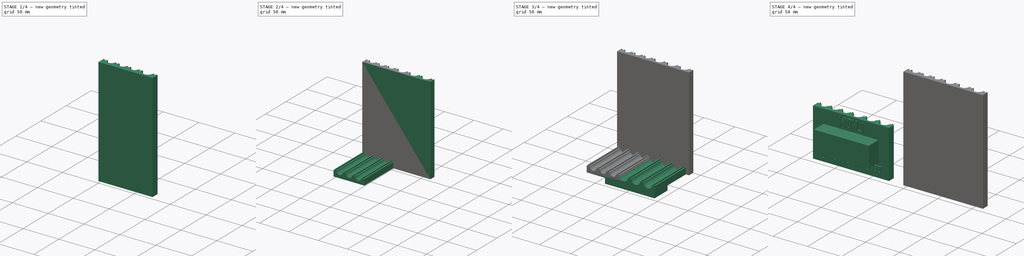
[diagram: build sequence overview — one tinted view per stage of 4, left to right]
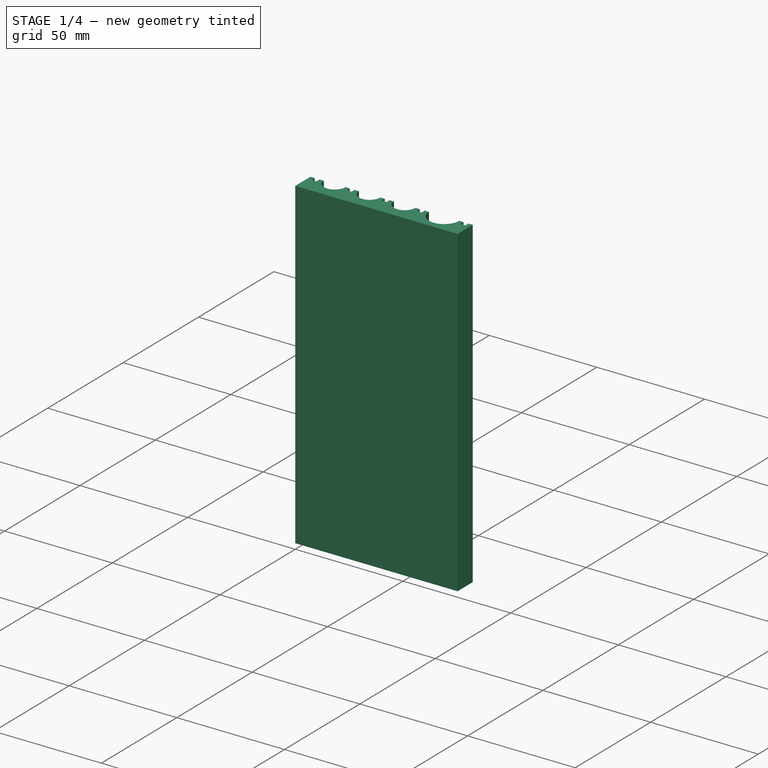
[diagram: stage 1 of 4 — iso view after this stage's code; geometry added in this stage tinted green]
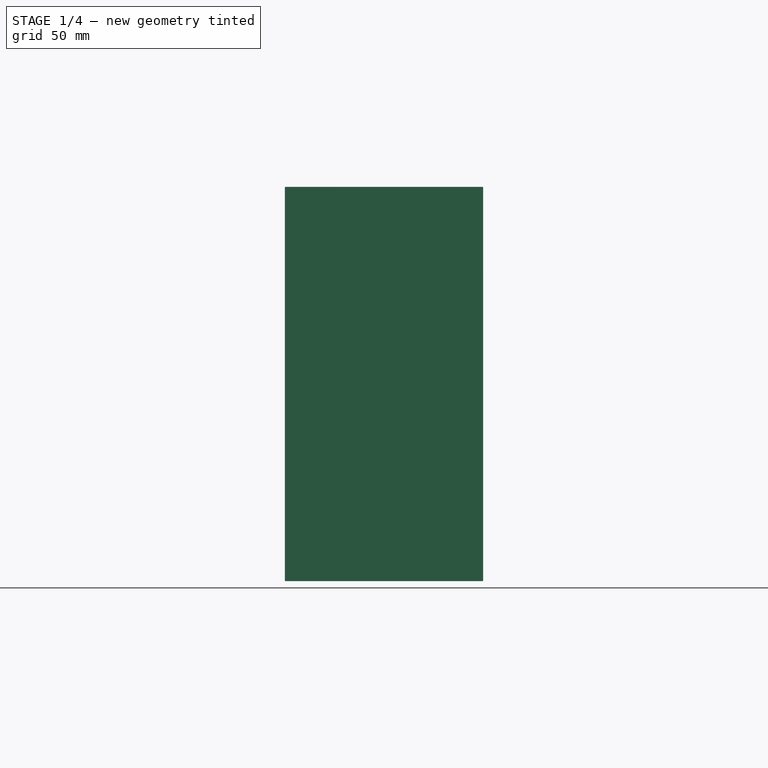
[diagram: stage 1 of 4 — front view after this stage's code; geometry added in this stage tinted green]
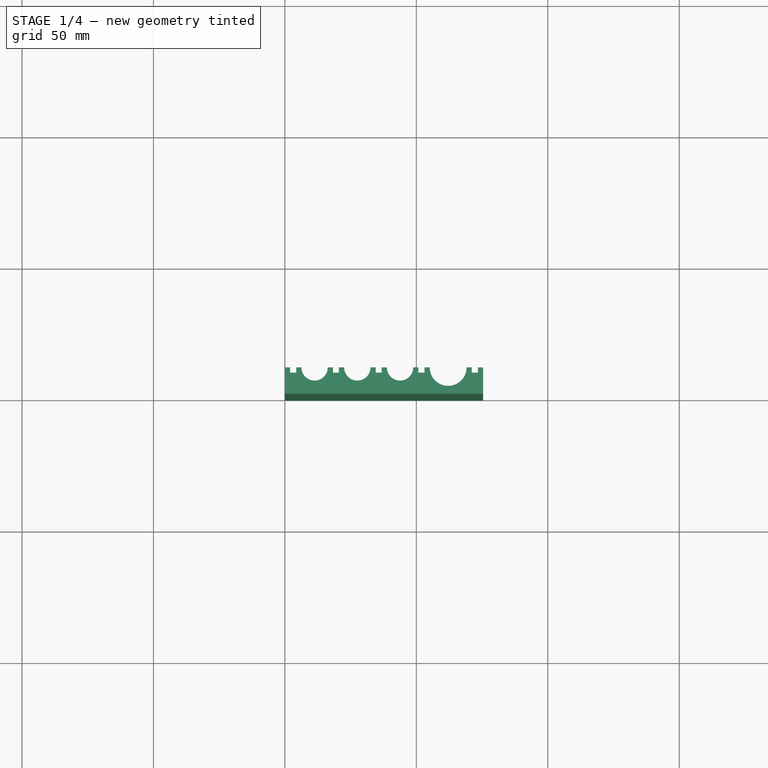
[diagram: stage 1 of 4 — top view after this stage's code; geometry added in this stage tinted green]
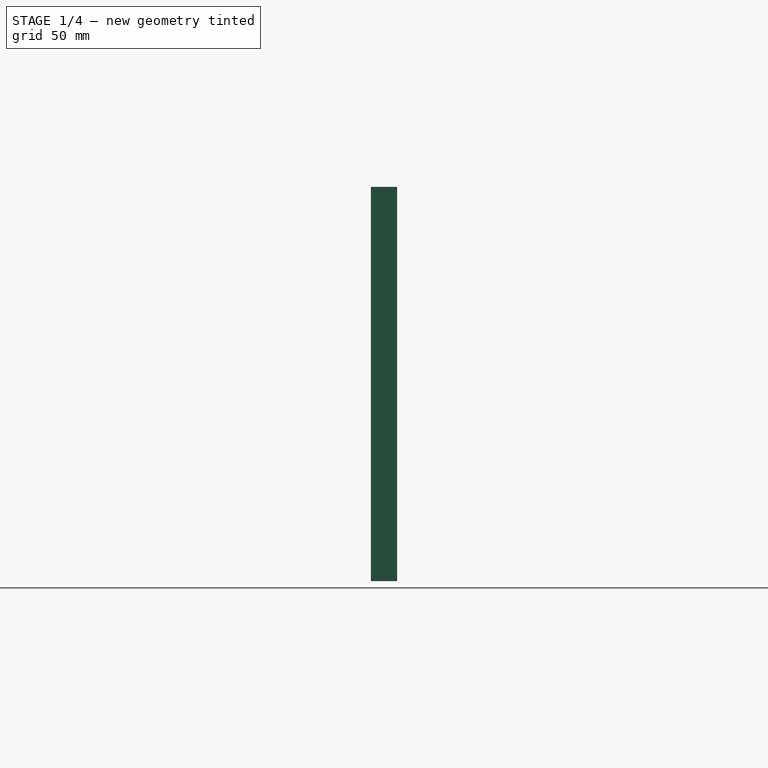
[diagram: stage 1 of 4 — right view after this stage's code; geometry added in this stage tinted green]
FCSTD DOCUMENT  (FreeCAD 1.1R39757 (Git))
Label: Каток влада
License: All rights reserved
LicenseURL: https://en.wikipedia.org/wiki/All_rights_reserved
objects: Sketcher::SketchObject×5, PartDesign::Pad×5, Measure::MeasureDistance×5, PartDesign::LinearPattern×4, Part::Feature×2, App::Point×2, Part::Part2DObjectPython×2, Part::Extrusion×2, Part::MultiFuse×2, PartDesign::Body×2, App::DocumentObjectGroup×1
note: 43 computed .brp shape members not serialized (recipe doc carries the construction recipe); baked Part::Feature solids carry a one-line shape summary decoded from their .brp

FEATURE [Part::Feature] _6mm_bottom001
  shape: bbox 120 x 10 x 150 mm, 3892 faces, 0 solids (baked)
FEATURE [Part::Feature] _6mm_top001
  shape: bbox 120 x 24 x 70 mm, 7716 faces, 0 solids (baked)
FEATURE [App::Point] Origin001
  Role = Origin
FEATURE [Sketcher::SketchObject] Sketch
  ArcFitTolerance = 1e-06
  AttachmentSupport = -> [XY_Plane]
  ExternalTypes = [0]
  FullyConstrained = true
  MakeInternals = false
  MapMode = 5
  sketch-geometry (14):
    g0: LineSegment StartX=18.3 StartY=8 StartZ=0 EndX=20.6 EndY=8 EndZ=0
    g1: LineSegment StartX=20.6 StartY=8 StartZ=0 EndX=20.6 EndY=10 EndZ=0
    g2: LineSegment StartX=20.6 StartY=10 StartZ=0 EndX=22.6 EndY=10 EndZ=0
    g3: LineSegment StartX=2 StartY=8 StartZ=0 EndX=2 EndY=10 EndZ=0
    g4: LineSegment StartX=2 StartY=10 StartZ=0 EndX=0 EndY=10 EndZ=0
    g5: LineSegment StartX=2 StartY=8 StartZ=0 EndX=4.3 EndY=8 EndZ=0
    g6: LineSegment StartX=4.3 StartY=8 StartZ=0 EndX=4.3 EndY=10 EndZ=0
    g7: LineSegment StartX=4.3 StartY=10 StartZ=0 EndX=6.3 EndY=10 EndZ=0
    g8: LineSegment StartX=16.3 StartY=10 StartZ=0 EndX=18.3 EndY=10 EndZ=0
    g9: LineSegment StartX=18.3 StartY=10 StartZ=0 EndX=18.3 EndY=8 EndZ=0
    g10: ArcOfCircle CenterX=11.3 CenterY=10 CenterZ=0 NormalX=0 NormalY=0 NormalZ=1 AngleXU=0 Radius=5 StartAngle=3.14159 EndAngle=6.28319
    g11: LineSegment StartX=0 StartY=10 StartZ=0 EndX=0 EndY=0 EndZ=0
    g12: LineSegment StartX=0 StartY=0 StartZ=0 EndX=22.6 EndY=0 EndZ=0
    g13: LineSegment StartX=22.6 StartY=0 StartZ=0 EndX=22.6 EndY=10 EndZ=0
  constraints (44):
    c: Coincident(g0,g1)
    c: Coincident(g1,g2)
    c: Vertical(g3)
    c: Coincident(g3,g4)
    c: Coincident(g3,g5)
    c: Coincident(g5,g6)
    c: Vertical(g6)
    c: Coincident(g6,g7)
    c: Horizontal(g7)
    c: Equal(g7,g4)
    c: Equal(g6,g3)
    c: Horizontal(g3,g6)
    c: Horizontal(g4)
    c: DistanceX(g5,g5) = 2.3
    c: DistanceY(g6,g6) = 2
    c: Coincident(g8,g9)
    c: Coincident(g9,g0)
    c: Vertical(g9)
    c: Vertical(g1)
    c: Horizontal(g2)
    c: Horizontal(g8)
    c: Equal(g2,g8)
    c: Equal(g1,g9)
    c: Equal(g1,g3)
    c: Equal(g0,g5)
    c: Equal(g4,g2)
    c: Horizontal(g1,g8)
    c: Coincident(g10,g7)
    c: Coincident(g10,g8)
    c: Horizontal(g10,g7)
    c: Horizontal(g10,g8)
    c: Radius(g10) = 5
    c: DistanceX(g7,g7) = 2
    c: Coincident(g11,g4)
    c: Coincident(g12,g11)
    c: Horizontal(g12)
    c: Coincident(g13,g12)
    c: Coincident(g13,g2)
    c: Vertical(g13)
    c: Distance(g10,g12) = 5
    c: Vertical(g11)
    c: Coincident(g11,g-1)
    c: DistanceX(g4,g2) = 22.6
    c: DistanceX(g3,g1) = 18.6
FEATURE [PartDesign::Pad] Pad
  Direction = (0,0,1)
  Length = 150
  Length2 = 10
  Profile = -> Sketch
  ReferenceAxis = -> Sketch [N_Axis]
  Refine = true
  Suppressed = false
  Type = 0
FEATURE [PartDesign::LinearPattern] LinearPattern
  BaseFeature = -> Pad
  Direction = -> Sketch [H_Axis]
  Length = 32.5
  Mode = 0
  Occurrences = 3
  Offset = 16.25
  Originals = -> [Pad]
  Refine = true
  Suppressed = false
  TransformMode = 0
FEATURE [Sketcher::SketchObject] Sketch005
  ArcFitTolerance = 1e-06
  AttachmentSupport = -> [LinearPattern]
  ExternalGeometry = -> [LinearPattern]
  ExternalTypes = [0,0,0]
  FullyConstrained = true
  MakeInternals = false
  MapMode = 5
  Placement = pos=(0,0,0) rot=(1,0,0;3.14159rad)
  sketch-geometry (17):
    g0: LineSegment StartX=48.8 StartY=-10 StartZ=0 EndX=50.8 EndY=-10 EndZ=0
    g1: LineSegment StartX=50.8 StartY=-10 StartZ=0 EndX=50.8 EndY=-8 EndZ=0
    g2: LineSegment StartX=50.8 StartY=-8 StartZ=0 EndX=53.1 EndY=-8 EndZ=0
    g3: LineSegment StartX=53.1 StartY=-8 StartZ=0 EndX=53.1 EndY=-10 EndZ=0
    g4: LineSegment StartX=53.1 StartY=-10 StartZ=0 EndX=55.1 EndY=-10 EndZ=0
    g5: LineSegment StartX=48.8 StartY=-10 StartZ=0 EndX=48.8 EndY=0 EndZ=0
    g6: LineSegment StartX=48.8 StartY=0 StartZ=0 EndX=75.4 EndY=0 EndZ=0
    g7: LineSegment StartX=75.4 StartY=0 StartZ=0 EndX=75.4 EndY=-10 EndZ=0
    g8: LineSegment StartX=71.1 StartY=-10 StartZ=0 EndX=71.1 EndY=-8 EndZ=0
    g9: LineSegment StartX=71.1 StartY=-8 StartZ=0 EndX=73.4 EndY=-8 EndZ=0
    g10: LineSegment StartX=73.4 StartY=-8 StartZ=0 EndX=73.4 EndY=-10 EndZ=0
    g11: LineSegment [constr] StartX=71.1 StartY=-8 StartZ=0 EndX=73.4 EndY=-8 EndZ=0
    g12: LineSegment StartX=69.1 StartY=-10 StartZ=0 EndX=71.1 EndY=-10 EndZ=0
    g13: LineSegment StartX=73.4 StartY=-10 StartZ=0 EndX=75.4 EndY=-10 EndZ=0
    g14: LineSegment [constr] StartX=73.4 StartY=-10 StartZ=0 EndX=75.4 EndY=-10 EndZ=0
    g15: LineSegment [constr] StartX=69.1 StartY=-10 StartZ=0 EndX=71.1 EndY=-10 EndZ=0
    g16: ArcOfCircle CenterX=62.1 CenterY=-10 CenterZ=0 NormalX=0 NormalY=0 NormalZ=1 AngleXU=0 Radius=7 StartAngle=0 EndAngle=3.14159
  constraints (44):
    c: Coincident(g-4,g0)
    c: Coincident(g0,g-4)
    c: Coincident(g0,g1)
    c: Coincident(g1,g-3)
    c: Coincident(g1,g2)
    c: Coincident(g2,g-3)
    c: Coincident(g2,g3)
    c: Vertical(g3)
    c: Coincident(g3,g4)
    c: Coincident(g4,g-5)
    c: Horizontal(g4)
    c: Coincident(g0,g5)
    c: PointOnObject(g5,g-1)
    c: Vertical(g5)
    c: Coincident(g5,g6)
    c: PointOnObject(g6,g-1)
    c: Coincident(g6,g7)
    c: Vertical(g7)
    c: Coincident(g15,g12)
    c: Coincident(g12,g15)
    c: Coincident(g12,g8)
    c: Coincident(g8,g11)
    c: Coincident(g8,g9)
    c: Coincident(g9,g11)
    c: Coincident(g9,g10)
    c: Vertical(g10)
    c: Coincident(g10,g13)
    c: Coincident(g13,g14)
    c: Horizontal(g13)
    c: Coincident(g7,g13)
    c: Coincident(g14,g10)
    c: Coincident(g16,g4)
    c: Coincident(g16,g12)
    c: Equal(g12,g4)
    c: Equal(g8,g3)
    c: Equal(g9,g2)
    c: Horizontal(g12)
    c: Vertical(g8)
    c: Horizontal(g9)
    c: Equal(g13,g12)
    c: Horizontal(g8,g10)
    c: Horizontal(g12,g4)
    c: Horizontal(g12,g16)
    c: Radius(g16) = 7
FEATURE [PartDesign::Pad] Pad005
  BaseFeature = -> LinearPattern
  Direction = (0,0,-1)
  Length = 150
  Length2 = 10
  Profile = -> Sketch005
  ReferenceAxis = -> Sketch005 [N_Axis]
  Refine = true
  Reversed = true
  Suppressed = false
  Type = 0
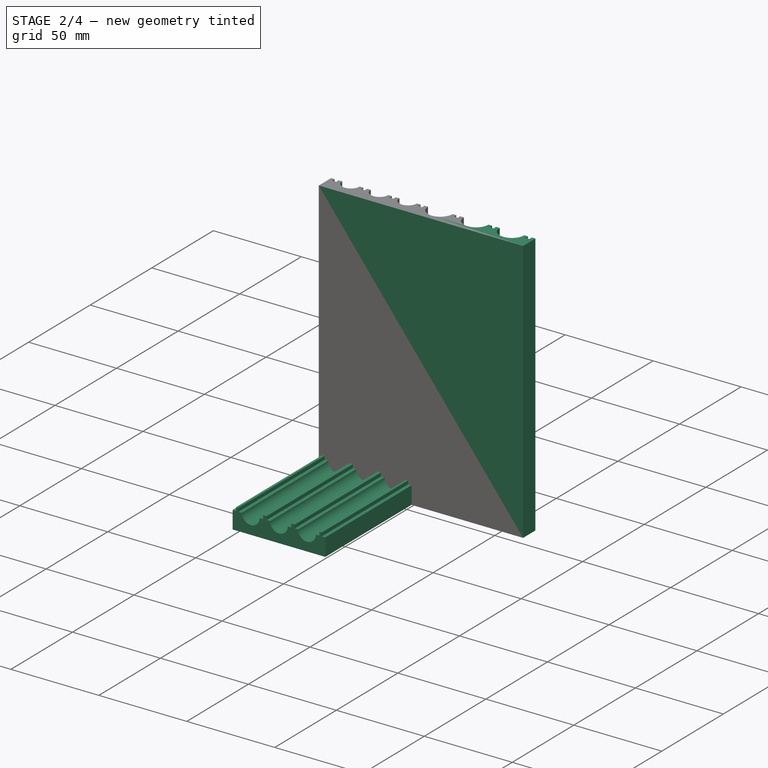
[diagram: stage 2 of 4 — iso view after this stage's code; geometry added in this stage tinted green]
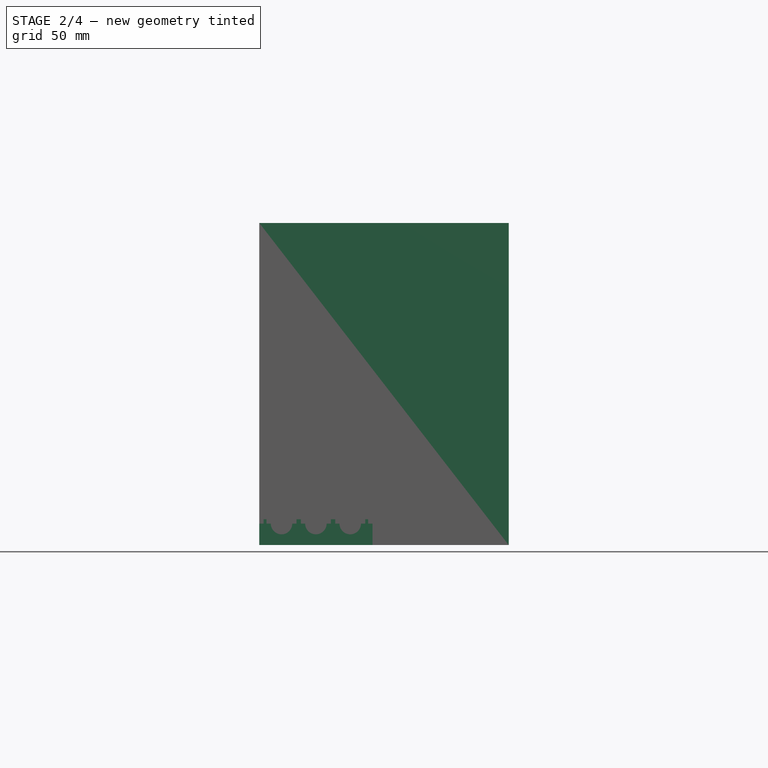
[diagram: stage 2 of 4 — front view after this stage's code; geometry added in this stage tinted green]
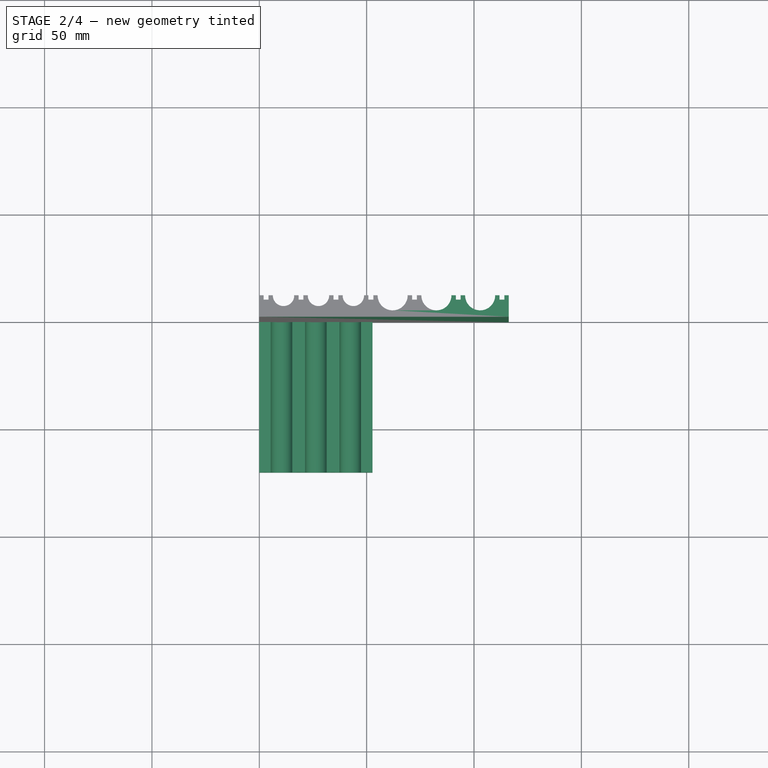
[diagram: stage 2 of 4 — top view after this stage's code; geometry added in this stage tinted green]
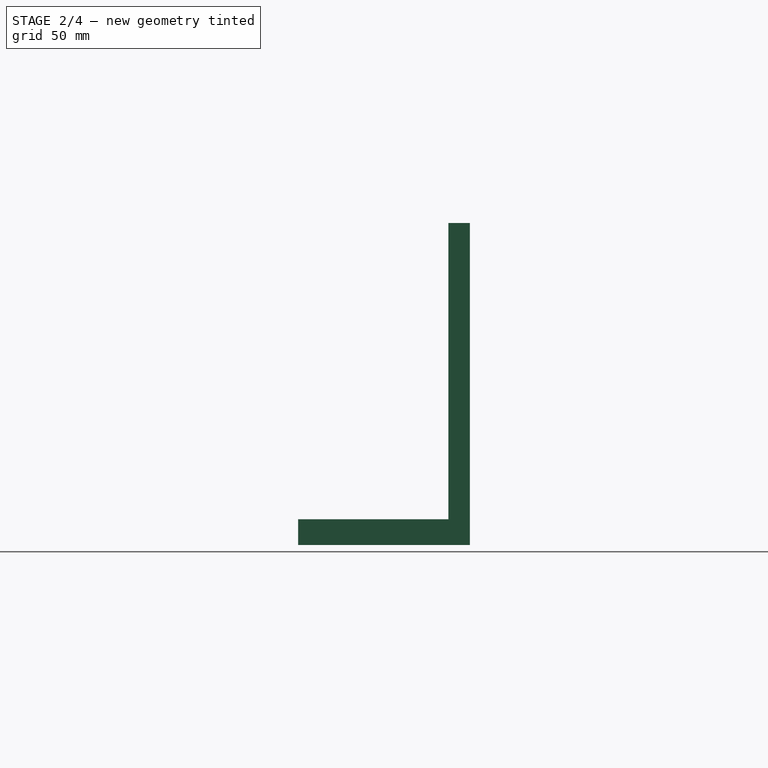
[diagram: stage 2 of 4 — right view after this stage's code; geometry added in this stage tinted green]
FEATURE [App::Point] Origin003
  Role = Origin
FEATURE [Sketcher::SketchObject] Sketch002
  ArcFitTolerance = 1e-06
  AttachmentSupport = -> [XZ_Plane001]
  ExternalTypes = [0]
  FullyConstrained = true
  MakeInternals = false
  MapMode = 5
  Placement = pos=(0,0,0) rot=(1,0,0;1.5708rad)
  sketch-geometry (14):
    g0: ArcOfCircle CenterX=10.35 CenterY=10 CenterZ=0 NormalX=0 NormalY=0 NormalZ=1 AngleXU=0 Radius=5 StartAngle=3.14159 EndAngle=6.28319
    g1: LineSegment StartX=5.35 StartY=10 StartZ=0 EndX=3.35 EndY=10 EndZ=0
    g2: LineSegment StartX=3.35 StartY=10 StartZ=0 EndX=3.35 EndY=12 EndZ=0
    g3: LineSegment StartX=3.35 StartY=12 StartZ=0 EndX=2 EndY=12 EndZ=0
    g4: LineSegment StartX=2 StartY=12 StartZ=0 EndX=2 EndY=10 EndZ=0
    g5: LineSegment StartX=2 StartY=10 StartZ=0 EndX=0 EndY=10 EndZ=0
    g6: LineSegment StartX=0 StartY=10 StartZ=0 EndX=0 EndY=0 EndZ=0
    g7: LineSegment StartX=0 StartY=0 StartZ=0 EndX=20.7 EndY=0 EndZ=0
    g8: LineSegment StartX=20.7 StartY=0 StartZ=0 EndX=20.7 EndY=10 EndZ=0
    g9: LineSegment StartX=15.35 StartY=10 StartZ=0 EndX=17.35 EndY=10 EndZ=0
    g10: LineSegment StartX=17.35 StartY=10 StartZ=0 EndX=17.35 EndY=12 EndZ=0
    g11: LineSegment StartX=17.35 StartY=12 StartZ=0 EndX=18.7 EndY=12 EndZ=0
    g12: LineSegment StartX=18.7 StartY=12 StartZ=0 EndX=18.7 EndY=10 EndZ=0
    g13: LineSegment StartX=18.7 StartY=10 StartZ=0 EndX=20.7 EndY=10 EndZ=0
  constraints (44):
    c: Horizontal(g0,g0)
    c: Horizontal(g0,g0)
    c: Radius(g0) = 5
    c: Horizontal(g1)
    c: Coincident(g1,g2)
    c: Vertical(g2)
    c: Coincident(g2,g3)
    c: Coincident(g3,g4)
    c: Coincident(g4,g5)
    c: DistanceX(g1,g1) = 2
    c: DistanceY(g2,g2) = 2
    c: Vertical(g4)
    c: Horizontal(g5)
    c: Horizontal(g4,g1)
    c: Equal(g1,g5)
    c: Horizontal(g3)
    c: DistanceX(g3,g3) = 1.35
    c: Coincident(g1,g0)
    c: Coincident(g5,g6)
    c: Vertical(g6)
    c: Coincident(g6,g7)
    c: Horizontal(g7)
    c: Coincident(g7,g8)
    c: Vertical(g8)
    c: Coincident(g9,g10)
    c: Coincident(g10,g11)
    c: Coincident(g11,g12)
    c: Coincident(g12,g13)
    c: Coincident(g13,g8)
    c: Horizontal(g9)
    c: Vertical(g10)
    c: Horizontal(g11)
    c: Vertical(g12)
    c: Horizontal(g13)
    c: Equal(g9,g13)
    c: Equal(g9,g1)
    c: Coincident(g9,g0)
    c: Equal(g10,g2)
    c: Equal(g11,g3)
    c: Horizontal(g12,g9)
    c: Distance(g0,g7) = 5
    c: Coincident(g6,g-1)
    c: DistanceX(g7,g7) = 20.7
    c: DistanceX(g4,g12) = 16.7
FEATURE [PartDesign::Pad] Pad002
  Direction = (0,-1,2e-16)
  Length = 70
  Length2 = 10
  Placement = pos=(0,0,0) rot=(1,0,0;1.5708rad)
  Profile = -> Sketch002
  ReferenceAxis = -> Sketch002 [N_Axis]
  Refine = true
  Suppressed = false
  Type = 0
FEATURE [PartDesign::LinearPattern] LinearPattern002
  BaseFeature = -> Pad002
  Direction = -> Sketch002 [H_Axis]
  Length = 32
  Mode = 0
  Occurrences = 3
  Offset = 16
  Originals = -> [Pad002]
  Placement = pos=(0,0,0) rot=(1,0,0;1.5708rad)
  Refine = true
  Suppressed = false
  TransformMode = 0
FEATURE [PartDesign::LinearPattern] LinearPattern004
  BaseFeature = -> Pad005
  Direction = -> Sketch005 [H_Axis]
  Length = 40.75
  Mode = 0
  Occurrences = 3
  Offset = 20.375
  Originals = -> [Pad005]
  Refine = true
  Suppressed = false
  TransformMode = 0
FEATURE [PartDesign::Body] Body  label="Тело"
  AllowCompound = false
  Group = -> [Sketch,Pad,LinearPattern,Sketch005,Pad005,LinearPattern004]
  Origin = -> Origin
  Tip = -> LinearPattern004
FEATURE [Measure::MeasureDistance] Distance  label="Distance: 2,30 mm"
  Distance = 2.3
  DistanceX = 2.3
  DistanceY = 0
  DistanceZ = 0
  Element1 = -> Body [LinearPattern.Vertex8]
  Element2 = -> Body [LinearPattern.Vertex6]
  Position1 = (4.3,10,150)
  Position2 = (2,10,150)
FEATURE [Measure::MeasureDistance] Distance001  label="Distance001: 2,25 mm"
  Distance = 2.25
  DistanceX = 2.25
  DistanceY = 0
  DistanceZ = 0
  Element1 = -> Body [LinearPattern.Vertex42]
  Element2 = -> Body [LinearPattern.Vertex43]
  Position1 = (18.3,10,150)
  Position2 = (20.55,10,150)
FEATURE [Measure::MeasureDistance] Distance002  label="Distance002: 2,23 mm"
  Distance = 2.225
  DistanceX = 2.225
  DistanceY = 1.8e-15
  DistanceZ = 0
  Element1 = -> Body [LinearPattern004.Vertex68]
  Element2 = -> Body [LinearPattern004.Vertex61]
  Position1 = (73.4,10,150)
  Position2 = (71.175,10,150)
FEATURE [Measure::MeasureDistance] Distance003  label="Distance003: 2,23 mm"
  Distance = 2.225
  DistanceX = 2.225
  DistanceY = 1.8e-15
  DistanceZ = 0
  Element1 = -> Body [LinearPattern004.Vertex80]
  Element2 = -> Body [LinearPattern004.Vertex73]
  Position1 = (93.775,10,150)
  Position2 = (91.55,10,150)
FEATURE [Measure::MeasureDistance] Distance004  label="Distance004: 1,87 mm"
  Distance = 1.875
  DistanceX = 1.875
  DistanceY = 0
  DistanceZ = 0
  Element1 = -> Body [LinearPattern004.?Vertex86]
  Element2 = -> Body [LinearPattern004.?Vertex79]
  Position1 = (92.85,10,150)
  Position2 = (90.975,10,150)
FEATURE [App::DocumentObjectGroup] Measurements
  Group = -> [Distance,Distance001,Distance002,Distance003,Distance004]
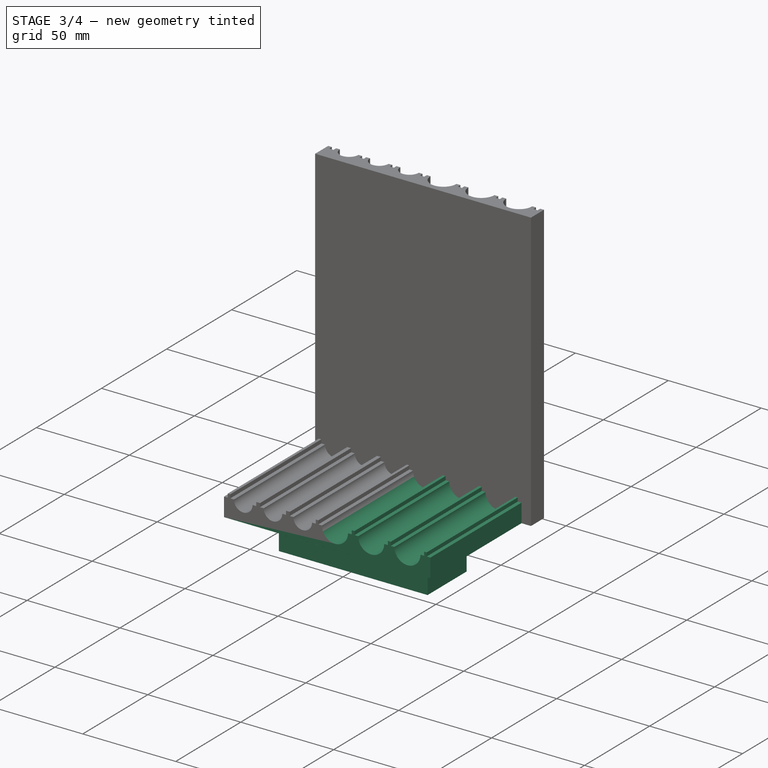
[diagram: stage 3 of 4 — iso view after this stage's code; geometry added in this stage tinted green]
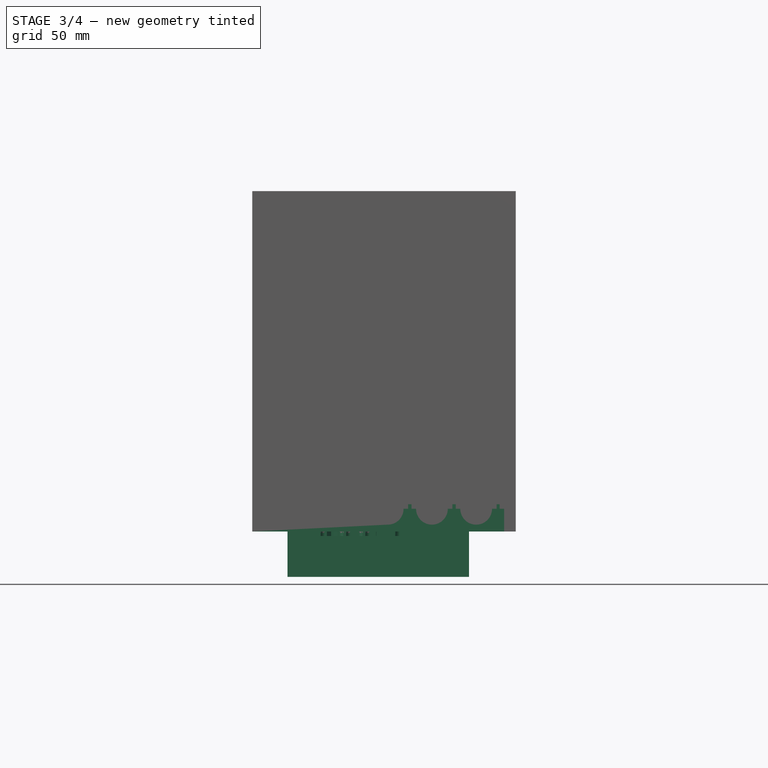
[diagram: stage 3 of 4 — front view after this stage's code; geometry added in this stage tinted green]
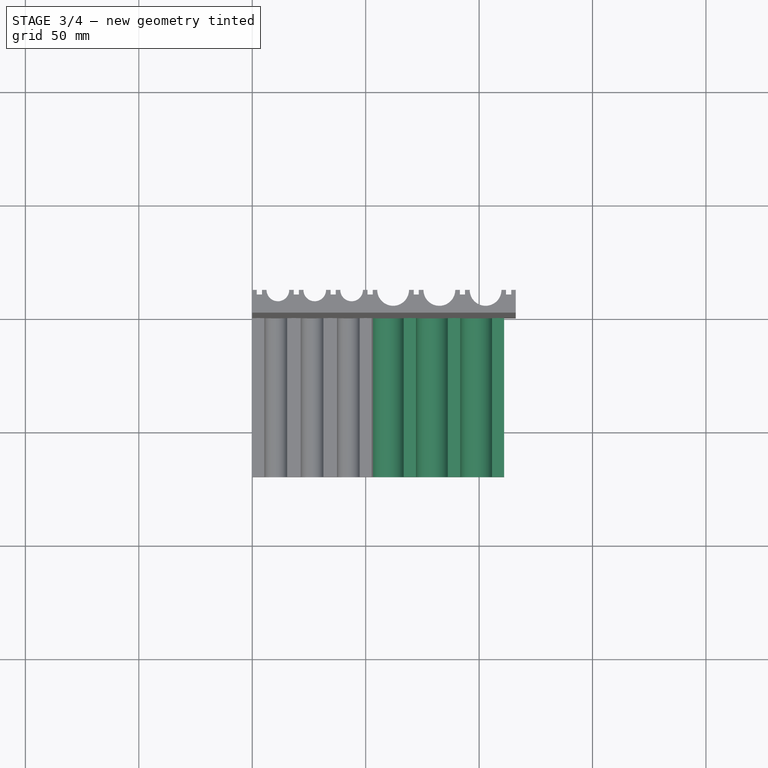
[diagram: stage 3 of 4 — top view after this stage's code; geometry added in this stage tinted green]
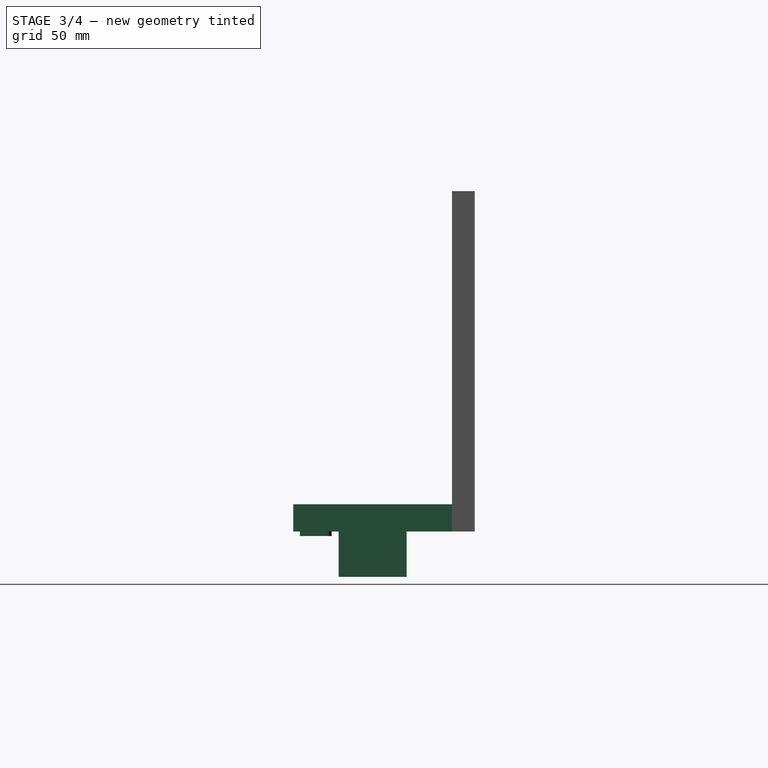
[diagram: stage 3 of 4 — right view after this stage's code; geometry added in this stage tinted green]
FEATURE [Sketcher::SketchObject] Sketch003
  ArcFitTolerance = 1e-06
  ExternalGeometry = -> [LinearPattern002]
  ExternalTypes = [0,0,0]
  FullyConstrained = true
  MakeInternals = false
  MapMode = 5
  Placement = pos=(0,0,0) rot=(-1,0,0;1.5708rad)
  sketch-geometry (14):
    g0: ArcOfCircle CenterX=59.7 CenterY=-10 CenterZ=0 NormalX=0 NormalY=0 NormalZ=1 AngleXU=0 Radius=7 StartAngle=0 EndAngle=3.14159
    g1: LineSegment StartX=47.35 StartY=-10 StartZ=0 EndX=49.35 EndY=-10 EndZ=0
    g2: LineSegment StartX=49.35 StartY=-10 StartZ=0 EndX=49.35 EndY=-12 EndZ=0
    g3: LineSegment StartX=49.35 StartY=-12 StartZ=0 EndX=50.7 EndY=-12 EndZ=0
    g4: LineSegment StartX=50.7 StartY=-12 StartZ=0 EndX=50.7 EndY=-10 EndZ=0
    g5: LineSegment StartX=50.7 StartY=-10 StartZ=0 EndX=52.7 EndY=-10 EndZ=0
    g6: LineSegment StartX=47.35 StartY=-10 StartZ=0 EndX=47.35 EndY=0 EndZ=0
    g7: LineSegment StartX=47.35 StartY=0 StartZ=0 EndX=72.05 EndY=0 EndZ=0
    g8: LineSegment StartX=72.05 StartY=0 StartZ=0 EndX=72.05 EndY=-10 EndZ=0
    g9: LineSegment StartX=72.05 StartY=-10 StartZ=0 EndX=70.05 EndY=-10 EndZ=0
    g10: LineSegment StartX=70.05 StartY=-10 StartZ=0 EndX=70.05 EndY=-12 EndZ=0
    g11: LineSegment StartX=70.05 StartY=-12 StartZ=0 EndX=68.7 EndY=-12 EndZ=0
    g12: LineSegment StartX=68.7 StartY=-12 StartZ=0 EndX=68.7 EndY=-10 EndZ=0
    g13: LineSegment StartX=68.7 StartY=-10 StartZ=0 EndX=66.7 EndY=-10 EndZ=0
  constraints (39):
    c: Radius(g0) = 7
    c: Horizontal(g0,g0)
    c: Horizontal(g0,g0)
    c: Coincident(g2,g3)
    c: Coincident(g3,g4)
    c: Vertical(g4)
    c: Coincident(g4,g5)
    c: Coincident(g5,g0)
    c: PointOnObject(g6,g-1)
    c: Vertical(g6)
    c: Coincident(g6,g7)
    c: PointOnObject(g7,g-1)
    c: Coincident(g7,g8)
    c: Vertical(g8)
    c: Coincident(g8,g9)
    c: Coincident(g9,g10)
    c: Coincident(g10,g11)
    c: Coincident(g11,g12)
    c: Coincident(g12,g13)
    c: Coincident(g13,g0)
    c: Vertical(g12)
    c: Horizontal(g13)
    c: Horizontal(g11)
    c: Vertical(g10)
    c: Horizontal(g9)
    c: Horizontal(g9,g12)
    c: Equal(g9,g13)
    c: Equal(g13,g5)
    c: Equal(g12,g4)
    c: Equal(g11,g3)
    c: Horizontal(g5)
    c: Coincident(g1,g6)
    c: Horizontal(g1,g4)
    c: Coincident(g2,g1)
    c: Equal(g5,g1)
    c: Coincident(g1,g-3)
    c: Coincident(g1,g-3)
    c: Coincident(g2,g-5)
    c: Coincident(g3,g-5)
FEATURE [PartDesign::Pad] Pad003
  BaseFeature = -> LinearPattern002
  Direction = (0,1,2e-16)
  Length = 70
  Length2 = 10
  Placement = pos=(0,0,0) rot=(1,0,0;1.5708rad)
  Profile = -> Sketch003
  ReferenceAxis = -> Sketch003 [N_Axis]
  Refine = true
  Reversed = true
  Suppressed = false
  Type = 0
FEATURE [PartDesign::LinearPattern] LinearPattern003
  BaseFeature = -> Pad003
  Direction = -> Sketch003 [H_Axis]
  Length = 39
  Mode = 0
  Occurrences = 3
  Offset = 19.5
  Originals = -> [Pad003]
  Placement = pos=(0,0,0) rot=(1,0,0;1.5708rad)
  Refine = true
  Suppressed = false
  TransformMode = 0
FEATURE [Part::Part2DObjectPython] ShapeString001  # Draft 2D object (typed FeaturePython)
  FontFile = <userpath>/ANVYL/ANVYL.ttf
  Fuse = false
  Justification = 6
  JustificationReference = 0
  KeepLeftMargin = false
  MakeFace = true
  ObliqueAngle = 0
  Placement = pos=(65.91,-67.09,9e-16) rot=(0,1,0;3.14159rad)
  ScaleToSize = true
  Size = 14
  String = ГНОМ
  Tracking = 0
FEATURE [Part::Extrusion] Extrude002
  Base = -> ShapeString001
  Dir = (0,0,-1)
  DirMode = 2
  FaceMakerClass = Part::FaceMakerBullseye
  FaceMakerMode = 3
  LengthFwd = 2
  LengthRev = 0
  Solid = false
  Symmetric = false
FEATURE [Sketcher::SketchObject] Sketch004
  ArcFitTolerance = 1e-06
  AttachmentSupport = -> [LinearPattern003]
  ExternalGeometry = -> [LinearPattern003]
  ExternalTypes = [0]
  FullyConstrained = true
  MakeInternals = false
  MapMode = 5
  Placement = pos=(0,0,1e-16) rot=(1,0,0;3.14159rad)
  sketch-geometry (5):
    g0: LineSegment StartX=15.525 StartY=20 StartZ=0 EndX=95.525 EndY=20 EndZ=0
    g1: LineSegment StartX=95.525 StartY=20 StartZ=0 EndX=95.525 EndY=50 EndZ=0
    g2: LineSegment StartX=95.525 StartY=50 StartZ=0 EndX=15.525 EndY=50 EndZ=0
    g3: LineSegment StartX=15.525 StartY=50 StartZ=0 EndX=15.525 EndY=20 EndZ=0
    g4: GeomPoint [constr] X=55.525 Y=35 Z=0
  constraints (12):
    c: Coincident(g0,g1)
    c: Coincident(g1,g2)
    c: Coincident(g2,g3)
    c: Coincident(g3,g0)
    c: Horizontal(g0)
    c: Horizontal(g2)
    c: Vertical(g1)
    c: Vertical(g3)
    c: Symmetric(g2,g0,g4)
    c: Distance(g1,g3) = 80
    c: Distance(g0,g2) = 30
    c: Symmetric(g-3,g-1,g4)
FEATURE [PartDesign::Pad] Pad004
  BaseFeature = -> LinearPattern003
  Direction = (0,0,-1)
  Length = 20
  Length2 = 10
  Placement = pos=(0,0,0) rot=(1,0,0;1.5708rad)
  Profile = -> Sketch004
  ReferenceAxis = -> Sketch004 [N_Axis]
  Refine = true
  Suppressed = false
  Type = 0
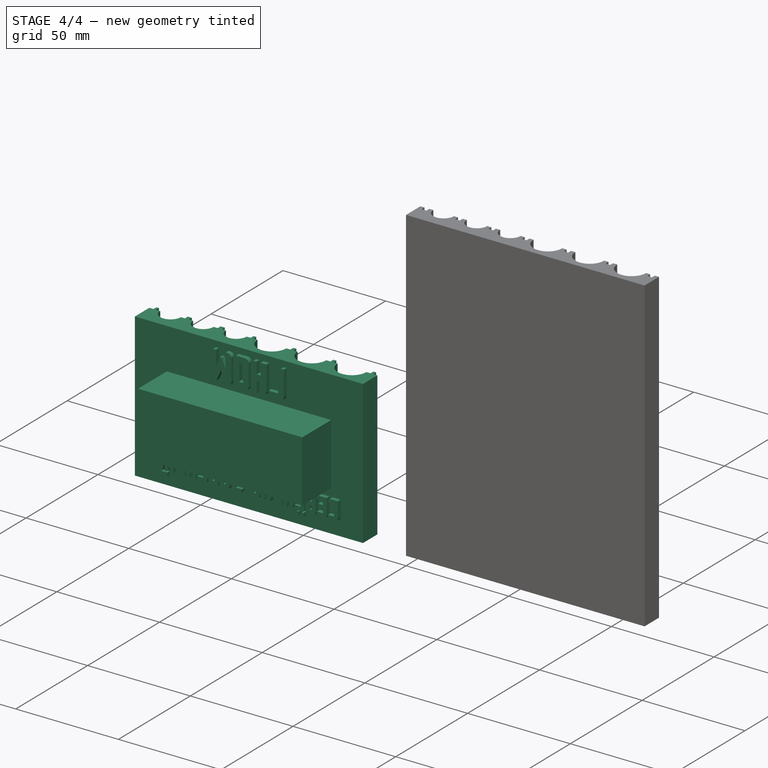
[diagram: stage 4 of 4 — iso view after this stage's code; geometry added in this stage tinted green]
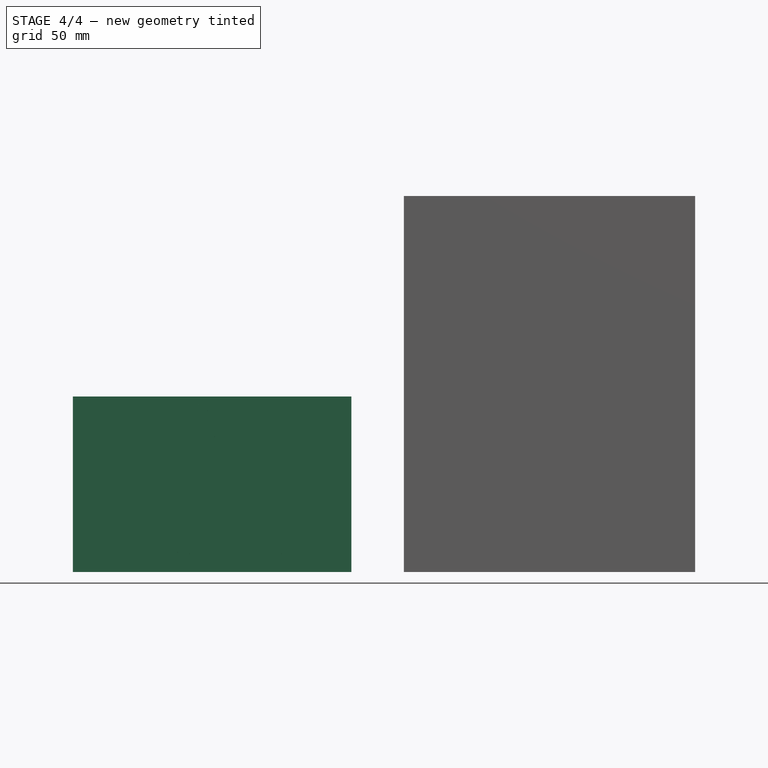
[diagram: stage 4 of 4 — front view after this stage's code; geometry added in this stage tinted green]
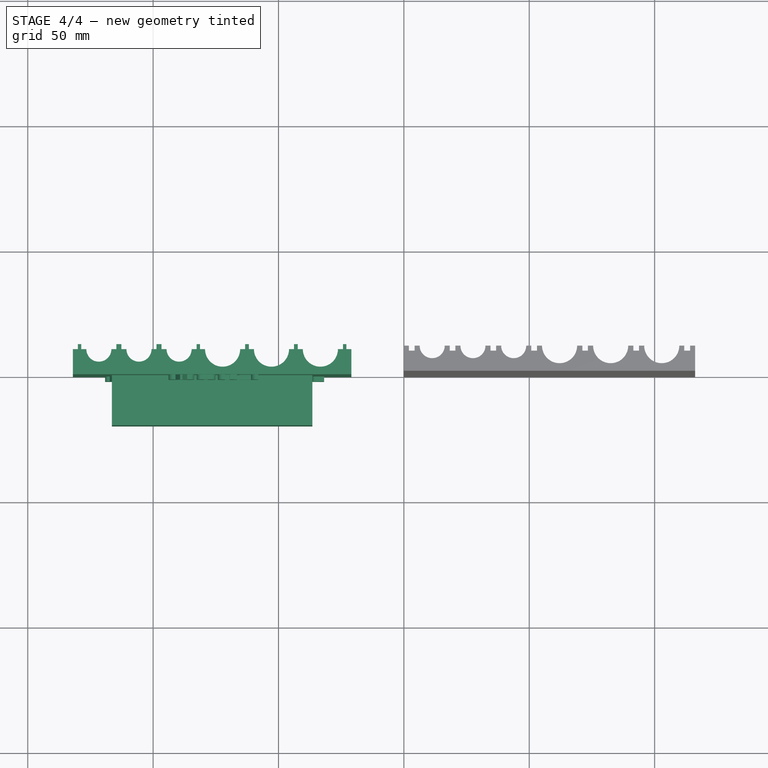
[diagram: stage 4 of 4 — top view after this stage's code; geometry added in this stage tinted green]
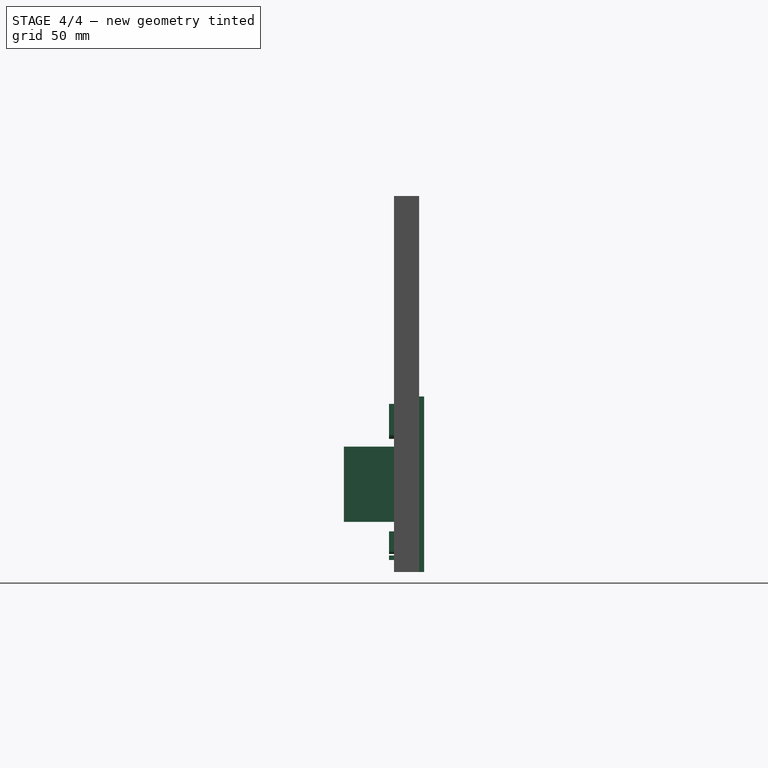
[diagram: stage 4 of 4 — right view after this stage's code; geometry added in this stage tinted green]
FEATURE [Part::Part2DObjectPython] ShapeString  # Draft 2D object (typed FeaturePython)
  FontFile = <userpath>/ANVYL/ANVYL.ttf
  Fuse = false
  Justification = 6
  JustificationReference = 0
  KeepLeftMargin = false
  MakeFace = true
  ObliqueAngle = 0
  Placement = pos=(92.19,-16.2,0) rot=(0,1,0;3.14159rad)
  ScaleToSize = true
  Size = 9
  String = Серёнька Злобный
  Tracking = 0
FEATURE [Part::Extrusion] Extrude001
  Base = -> ShapeString
  Dir = (0,0,-1)
  DirMode = 2
  FaceMakerClass = Part::FaceMakerBullseye
  FaceMakerMode = 3
  LengthFwd = 2
  LengthRev = 0
  Solid = false
  Symmetric = false
FEATURE [Part::MultiFuse] Fusion
  Placement = pos=(8,0,0) rot=(0,0,1;0rad)
  Refine = true
  Shapes = -> [Extrude001,Extrude002]
FEATURE [PartDesign::Body] Body001  label="Тело001"
  AllowCompound = false
  Group = -> [Sketch002,Pad002,LinearPattern002,Sketch003,Pad003,LinearPattern003,Sketch004,Pad004]
  Origin = -> Origin002
  Tip = -> Pad004
FEATURE [Part::MultiFuse] Fusion001
  Placement = pos=(-132,0,0) rot=(1,0,0;4.71239rad)
  Refine = true
  Shapes = -> [Fusion,Body001]
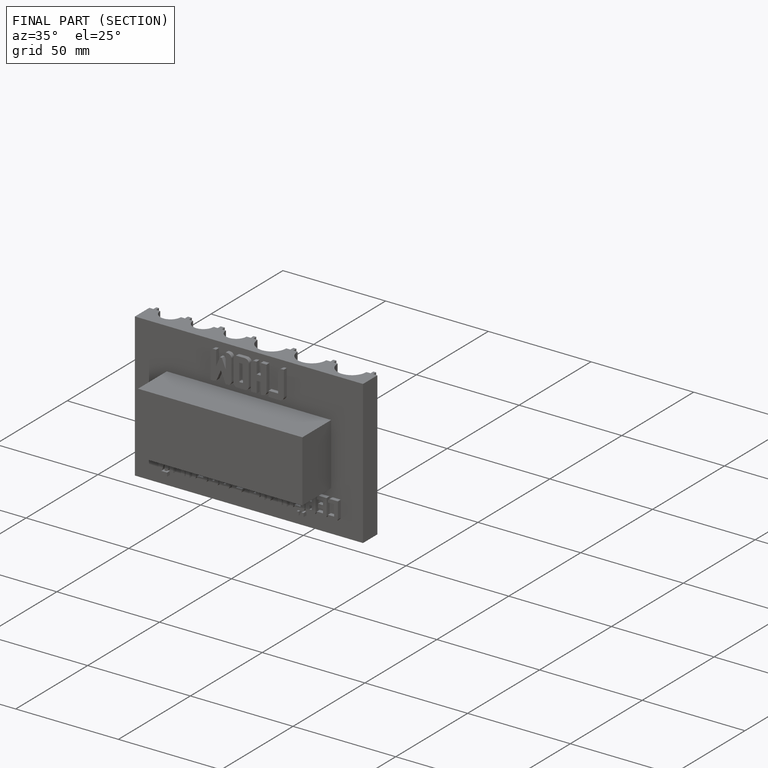
[diagram: finished part — half-section view (interior)]
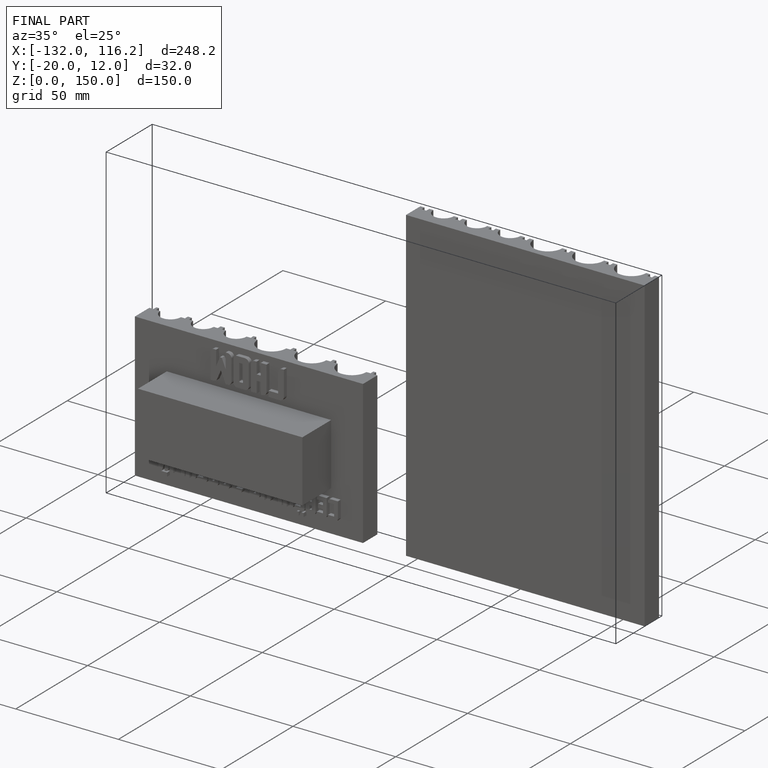
[diagram: finished part — iso view with bounding-box wireframe]
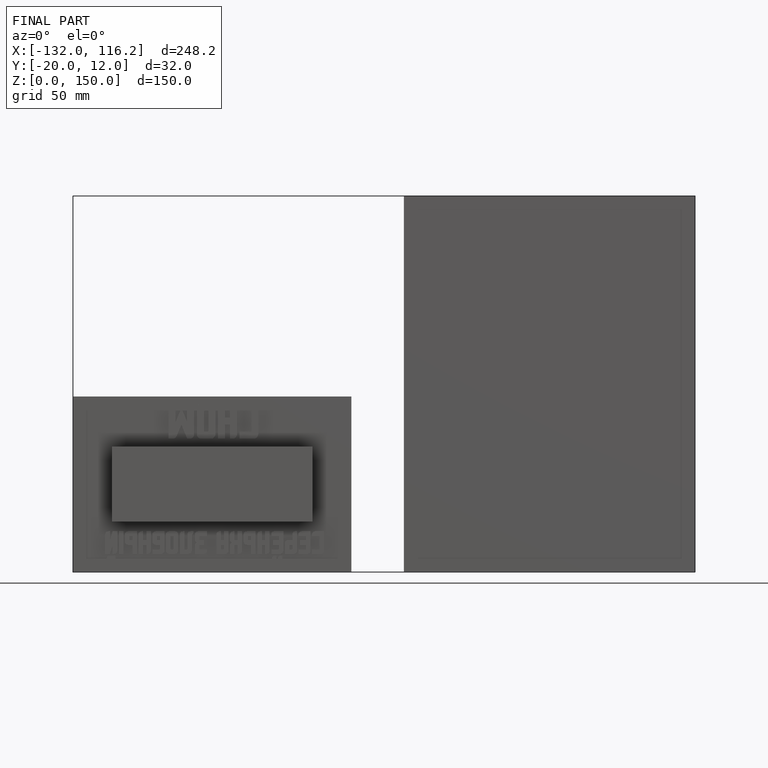
[diagram: finished part — front view with bounding-box wireframe]
